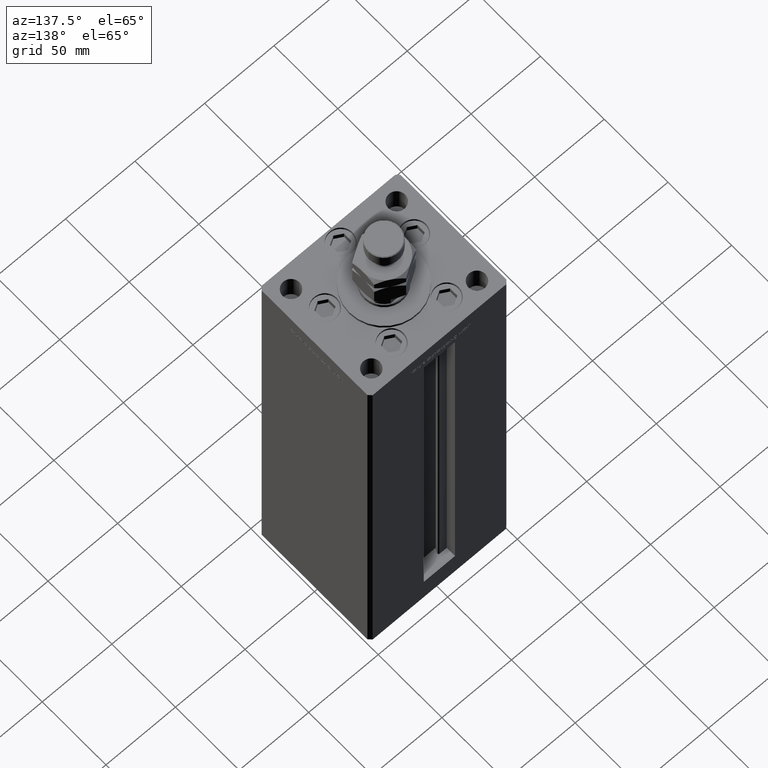
[diagram: clean part render]
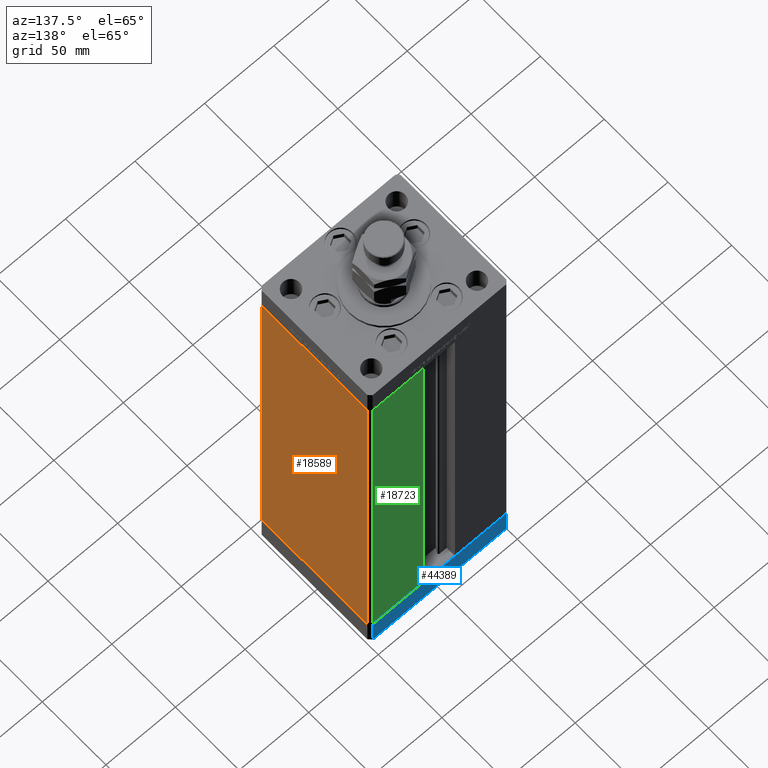
[diagram: same view with three faces highlighted in distinct colors, each labeled with its STEP entity id]
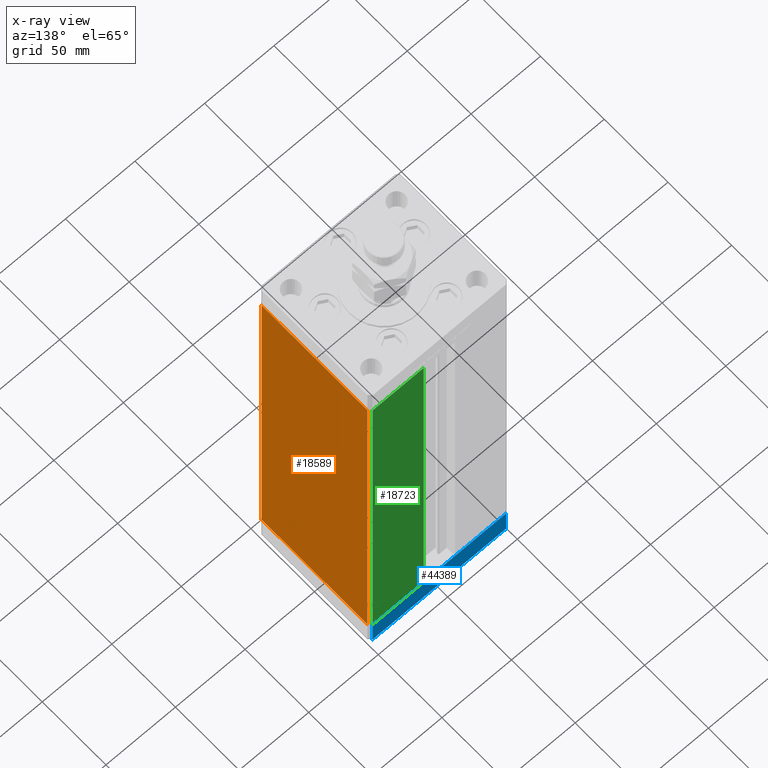
[diagram: x-ray of the same camera — body ghosted, the three highlighted faces saturated]
A machine part, auxiliary view with three faces highlighted in distinct colors.
The next image is the same camera in x-ray (body ghosted, the three faces saturated) — at least one of them is partly hidden behind the body in this view.
Their STEP definitions:

[orange] entity #18589 — the highlighted planar face has unit normal (1, -0, 0).
#95 = VECTOR ( 'NONE', #31140, 1000.000000000000000 ) ;
#1262 = EDGE_CURVE ( 'NONE', #48305, #30196, #6999, .T. ) ;
#5743 = CARTESIAN_POINT ( 'NONE',  ( 50.00000000000001421, 41.49999999999999289, 268.5000000000000000 ) ) ;
#5857 = VECTOR ( 'NONE', #24017, 1000.000000000000000 ) ;
#6088 = CARTESIAN_POINT ( 'NONE',  ( 50.00000000000001421, 41.49999999999999289, 0.000000000000000000 ) ) ;
#6999 = LINE ( 'NONE', #52772, #37741 ) ;
#7233 = DIRECTION ( 'NONE',  ( 1.000000000000000000, -3.344045254895050480E-16, 0.000000000000000000 ) ) ;
#7510 = PLANE ( 'NONE',  #16080 ) ;
#9902 = VERTEX_POINT ( 'NONE', #26744 ) ;
#13714 = LINE ( 'NONE', #6088, #5857 ) ;
#15442 = DIRECTION ( 'NONE',  ( -0.000000000000000000, -0.000000000000000000, -1.000000000000000000 ) ) ;
#16080 = AXIS2_PLACEMENT_3D ( 'NONE', #48660, #7233, #23826 ) ;
#17736 = ORIENTED_EDGE ( 'NONE', *, *, #51649, .F. ) ;
#18386 = ORIENTED_EDGE ( 'NONE', *, *, #44690, .T. ) ;
#18589 = ADVANCED_FACE ( 'NONE', ( #18962 ), #7510, .T. ) ;
#18962 = FACE_OUTER_BOUND ( 'NONE', #33313, .T. ) ;
#23489 = CARTESIAN_POINT ( 'NONE',  ( 50.00000000000001421, 41.49999999999999289, 268.5000000000000000 ) ) ;
#23826 = DIRECTION ( 'NONE',  ( 3.344045254895050480E-16, 1.000000000000000000, 0.000000000000000000 ) ) ;
#24017 = DIRECTION ( 'NONE',  ( -3.344045254895050973E-16, -1.000000000000000000, 0.000000000000000000 ) ) ;
#26694 = LINE ( 'NONE', #5743, #33434 ) ;
#26744 = CARTESIAN_POINT ( 'NONE',  ( 50.00000000000001421, 41.49999999999999289, 268.5000000000000000 ) ) ;
#27106 = CARTESIAN_POINT ( 'NONE',  ( 49.99999999999998579, -41.49999999999999289, 268.5000000000000000 ) ) ;
#30196 = VERTEX_POINT ( 'NONE', #39945 ) ;
#30479 = CARTESIAN_POINT ( 'NONE',  ( 50.00000000000001421, 41.49999999999999289, 0.000000000000000000 ) ) ;
#31094 = EDGE_CURVE ( 'NONE', #46094, #30196, #13714, .T. ) ;
#31140 = DIRECTION ( 'NONE',  ( -3.344045254895050973E-16, -1.000000000000000000, 0.000000000000000000 ) ) ;
#31405 = LINE ( 'NONE', #23489, #95 ) ;
#33313 = EDGE_LOOP ( 'NONE', ( #36000, #17736, #18386, #35771 ) ) ;
#33434 = VECTOR ( 'NONE', #51505, 1000.000000000000000 ) ;
#35771 = ORIENTED_EDGE ( 'NONE', *, *, #1262, .T. ) ;
#36000 = ORIENTED_EDGE ( 'NONE', *, *, #31094, .F. ) ;
#37741 = VECTOR ( 'NONE', #15442, 1000.000000000000000 ) ;
#39945 = CARTESIAN_POINT ( 'NONE',  ( 49.99999999999998579, -41.49999999999999289, 0.000000000000000000 ) ) ;
#44690 = EDGE_CURVE ( 'NONE', #9902, #48305, #31405, .T. ) ;
#46094 = VERTEX_POINT ( 'NONE', #30479 ) ;
#48305 = VERTEX_POINT ( 'NONE', #27106 ) ;
#48660 = CARTESIAN_POINT ( 'NONE',  ( 50.00000000000001421, 41.49999999999999289, 268.5000000000000000 ) ) ;
#51505 = DIRECTION ( 'NONE',  ( -0.000000000000000000, -0.000000000000000000, -1.000000000000000000 ) ) ;
#51649 = EDGE_CURVE ( 'NONE', #9902, #46094, #26694, .T. ) ;
#52772 = CARTESIAN_POINT ( 'NONE',  ( 49.99999999999998579, -41.49999999999999289, 268.5000000000000000 ) ) ;

[blue] entity #44389 — the highlighted planar face has unit normal (0, 1, 0).
#1585 = CARTESIAN_POINT ( 'NONE',  ( 47.99999999999990763, 43.50000000000000000, 0.000000000000000000 ) ) ;
#1591 = ORIENTED_EDGE ( 'NONE', *, *, #34331, .F. ) ;
#2721 = LINE ( 'NONE', #19321, #46651 ) ;
#3584 = LINE ( 'NONE', #32436, #38695 ) ;
#4468 = EDGE_CURVE ( 'NONE', #18716, #25241, #26071, .T. ) ;
#5011 = ORIENTED_EDGE ( 'NONE', *, *, #23814, .T. ) ;
#5345 = VERTEX_POINT ( 'NONE', #16637 ) ;
#8279 = VECTOR ( 'NONE', #38336, 1000.000000000000000 ) ;
#10580 = VERTEX_POINT ( 'NONE', #39895 ) ;
#11313 = DIRECTION ( 'NONE',  ( -3.614007241618350743E-16, 1.000000000000000000, 0.000000000000000000 ) ) ;
#13598 = CARTESIAN_POINT ( 'NONE',  ( 47.99999999999990763, 43.50000000000000000, -19.00000000000000000 ) ) ;
#13816 = VECTOR ( 'NONE', #18223, 1000.000000000000000 ) ;
#16558 = AXIS2_PLACEMENT_3D ( 'NONE', #48643, #11313, #30456 ) ;
#16637 = CARTESIAN_POINT ( 'NONE',  ( -48.00000000000000711, 43.49999999999996447, -19.00000000000000000 ) ) ;
#18223 = DIRECTION ( 'NONE',  ( 0.000000000000000000, 0.000000000000000000, 1.000000000000000000 ) ) ;
#18716 = VERTEX_POINT ( 'NONE', #29531 ) ;
#19321 = CARTESIAN_POINT ( 'NONE',  ( -48.00000000000000711, 43.49999999999996447, -19.00000000000000000 ) ) ;
#19864 = DIRECTION ( 'NONE',  ( 0.000000000000000000, 0.000000000000000000, 1.000000000000000000 ) ) ;
#19924 = DIRECTION ( 'NONE',  ( -1.000000000000000000, -3.614007241618350743E-16, 0.000000000000000000 ) ) ;
#22270 = EDGE_LOOP ( 'NONE', ( #24838, #1591, #5011, #35500 ) ) ;
#23034 = CARTESIAN_POINT ( 'NONE',  ( -48.00000000000000711, 43.49999999999996447, 0.000000000000000000 ) ) ;
#23814 = EDGE_CURVE ( 'NONE', #10580, #5345, #3584, .T. ) ;
#24838 = ORIENTED_EDGE ( 'NONE', *, *, #4468, .F. ) ;
#25241 = VERTEX_POINT ( 'NONE', #23034 ) ;
#26071 = LINE ( 'NONE', #1585, #8279 ) ;
#26902 = PLANE ( 'NONE',  #16558 ) ;
#26996 = EDGE_CURVE ( 'NONE', #5345, #25241, #2721, .T. ) ;
#29531 = CARTESIAN_POINT ( 'NONE',  ( 47.99999999999990763, 43.50000000000000000, 0.000000000000000000 ) ) ;
#30456 = DIRECTION ( 'NONE',  ( -1.000000000000000000, -3.614007241618350743E-16, 0.000000000000000000 ) ) ;
#31018 = LINE ( 'NONE', #13598, #13816 ) ;
#32436 = CARTESIAN_POINT ( 'NONE',  ( 47.99999999999990763, 43.50000000000000000, -19.00000000000000000 ) ) ;
#34331 = EDGE_CURVE ( 'NONE', #10580, #18716, #31018, .T. ) ;
#35500 = ORIENTED_EDGE ( 'NONE', *, *, #26996, .T. ) ;
#38336 = DIRECTION ( 'NONE',  ( -1.000000000000000000, -3.614007241618350743E-16, 0.000000000000000000 ) ) ;
#38695 = VECTOR ( 'NONE', #19924, 1000.000000000000000 ) ;
#39165 = FACE_OUTER_BOUND ( 'NONE', #22270, .T. ) ;
#39895 = CARTESIAN_POINT ( 'NONE',  ( 47.99999999999990763, 43.50000000000000000, -19.00000000000000000 ) ) ;
#44389 = ADVANCED_FACE ( 'NONE', ( #39165 ), #26902, .T. ) ;
#46651 = VECTOR ( 'NONE', #19864, 1000.000000000000000 ) ;
#48643 = CARTESIAN_POINT ( 'NONE',  ( 47.99999999999990763, 43.50000000000000000, -19.00000000000000000 ) ) ;

[green] entity #18723 — the highlighted planar face has unit normal (0, -1, 0).
#147 = CARTESIAN_POINT ( 'NONE',  ( -11.24999999999999822, 43.50000000000000000, 268.5000000000000000 ) ) ;
#2607 = ORIENTED_EDGE ( 'NONE', *, *, #38636, .T. ) ;
#4233 = DIRECTION ( 'NONE',  ( 0.000000000000000000, -0.000000000000000000, -1.000000000000000000 ) ) ;
#6119 = CARTESIAN_POINT ( 'NONE',  ( 11.24999999999999822, 43.50000000000000000, 0.000000000000000000 ) ) ;
#8306 = PLANE ( 'NONE',  #36961 ) ;
#8831 = CARTESIAN_POINT ( 'NONE',  ( 48.00000000000000711, 43.50000000000000000, 268.5000000000000000 ) ) ;
#9196 = LINE ( 'NONE', #6119, #40772 ) ;
#9927 = CARTESIAN_POINT ( 'NONE',  ( 48.00000000000000711, 43.50000000000000000, 268.5000000000000000 ) ) ;
#10615 = EDGE_CURVE ( 'NONE', #52664, #12974, #35808, .T. ) ;
#12119 = DIRECTION ( 'NONE',  ( 1.000000000000000000, 0.000000000000000000, 0.000000000000000000 ) ) ;
#12957 = EDGE_CURVE ( 'NONE', #13778, #17255, #53000, .T. ) ;
#12974 = VERTEX_POINT ( 'NONE', #53517 ) ;
#13778 = VERTEX_POINT ( 'NONE', #53798 ) ;
#14873 = EDGE_LOOP ( 'NONE', ( #22742, #2607, #46024, #45286 ) ) ;
#17255 = VERTEX_POINT ( 'NONE', #9927 ) ;
#18723 = ADVANCED_FACE ( 'NONE', ( #24901 ), #8306, .F. ) ;
#20959 = VECTOR ( 'NONE', #43144, 1000.000000000000000 ) ;
#21699 = DIRECTION ( 'NONE',  ( -0.000000000000000000, -0.000000000000000000, 1.000000000000000000 ) ) ;
#22722 = CARTESIAN_POINT ( 'NONE',  ( -11.24999999999999822, 43.50000000000000000, 0.000000000000000000 ) ) ;
#22742 = ORIENTED_EDGE ( 'NONE', *, *, #10615, .T. ) ;
#24901 = FACE_OUTER_BOUND ( 'NONE', #14873, .T. ) ;
#30596 = LINE ( 'NONE', #8831, #20959 ) ;
#35268 = DIRECTION ( 'NONE',  ( -1.000000000000000000, 0.000000000000000000, 0.000000000000000000 ) ) ;
#35808 = LINE ( 'NONE', #22722, #45772 ) ;
#36961 = AXIS2_PLACEMENT_3D ( 'NONE', #147, #41546, #4233 ) ;
#37136 = VECTOR ( 'NONE', #12119, 1000.000000000000000 ) ;
#38636 = EDGE_CURVE ( 'NONE', #12974, #13778, #9196, .T. ) ;
#40772 = VECTOR ( 'NONE', #21699, 1000.000000000000000 ) ;
#41546 = DIRECTION ( 'NONE',  ( 0.000000000000000000, -1.000000000000000000, 0.000000000000000000 ) ) ;
#43144 = DIRECTION ( 'NONE',  ( -0.000000000000000000, -0.000000000000000000, -1.000000000000000000 ) ) ;
#43619 = CARTESIAN_POINT ( 'NONE',  ( 48.00000000000000711, 43.50000000000000000, 0.000000000000000000 ) ) ;
#44575 = EDGE_CURVE ( 'NONE', #17255, #52664, #30596, .T. ) ;
#45286 = ORIENTED_EDGE ( 'NONE', *, *, #44575, .T. ) ;
#45772 = VECTOR ( 'NONE', #35268, 1000.000000000000000 ) ;
#46024 = ORIENTED_EDGE ( 'NONE', *, *, #12957, .T. ) ;
#49448 = CARTESIAN_POINT ( 'NONE',  ( -11.24999999999999822, 43.50000000000000000, 268.5000000000000000 ) ) ;
#52664 = VERTEX_POINT ( 'NONE', #43619 ) ;
#53000 = LINE ( 'NONE', #49448, #37136 ) ;
#53517 = CARTESIAN_POINT ( 'NONE',  ( 11.24999999999999822, 43.50000000000000000, 0.000000000000000000 ) ) ;
#53798 = CARTESIAN_POINT ( 'NONE',  ( 11.24999999999999112, 43.50000000000000000, 268.5000000000000000 ) ) ;